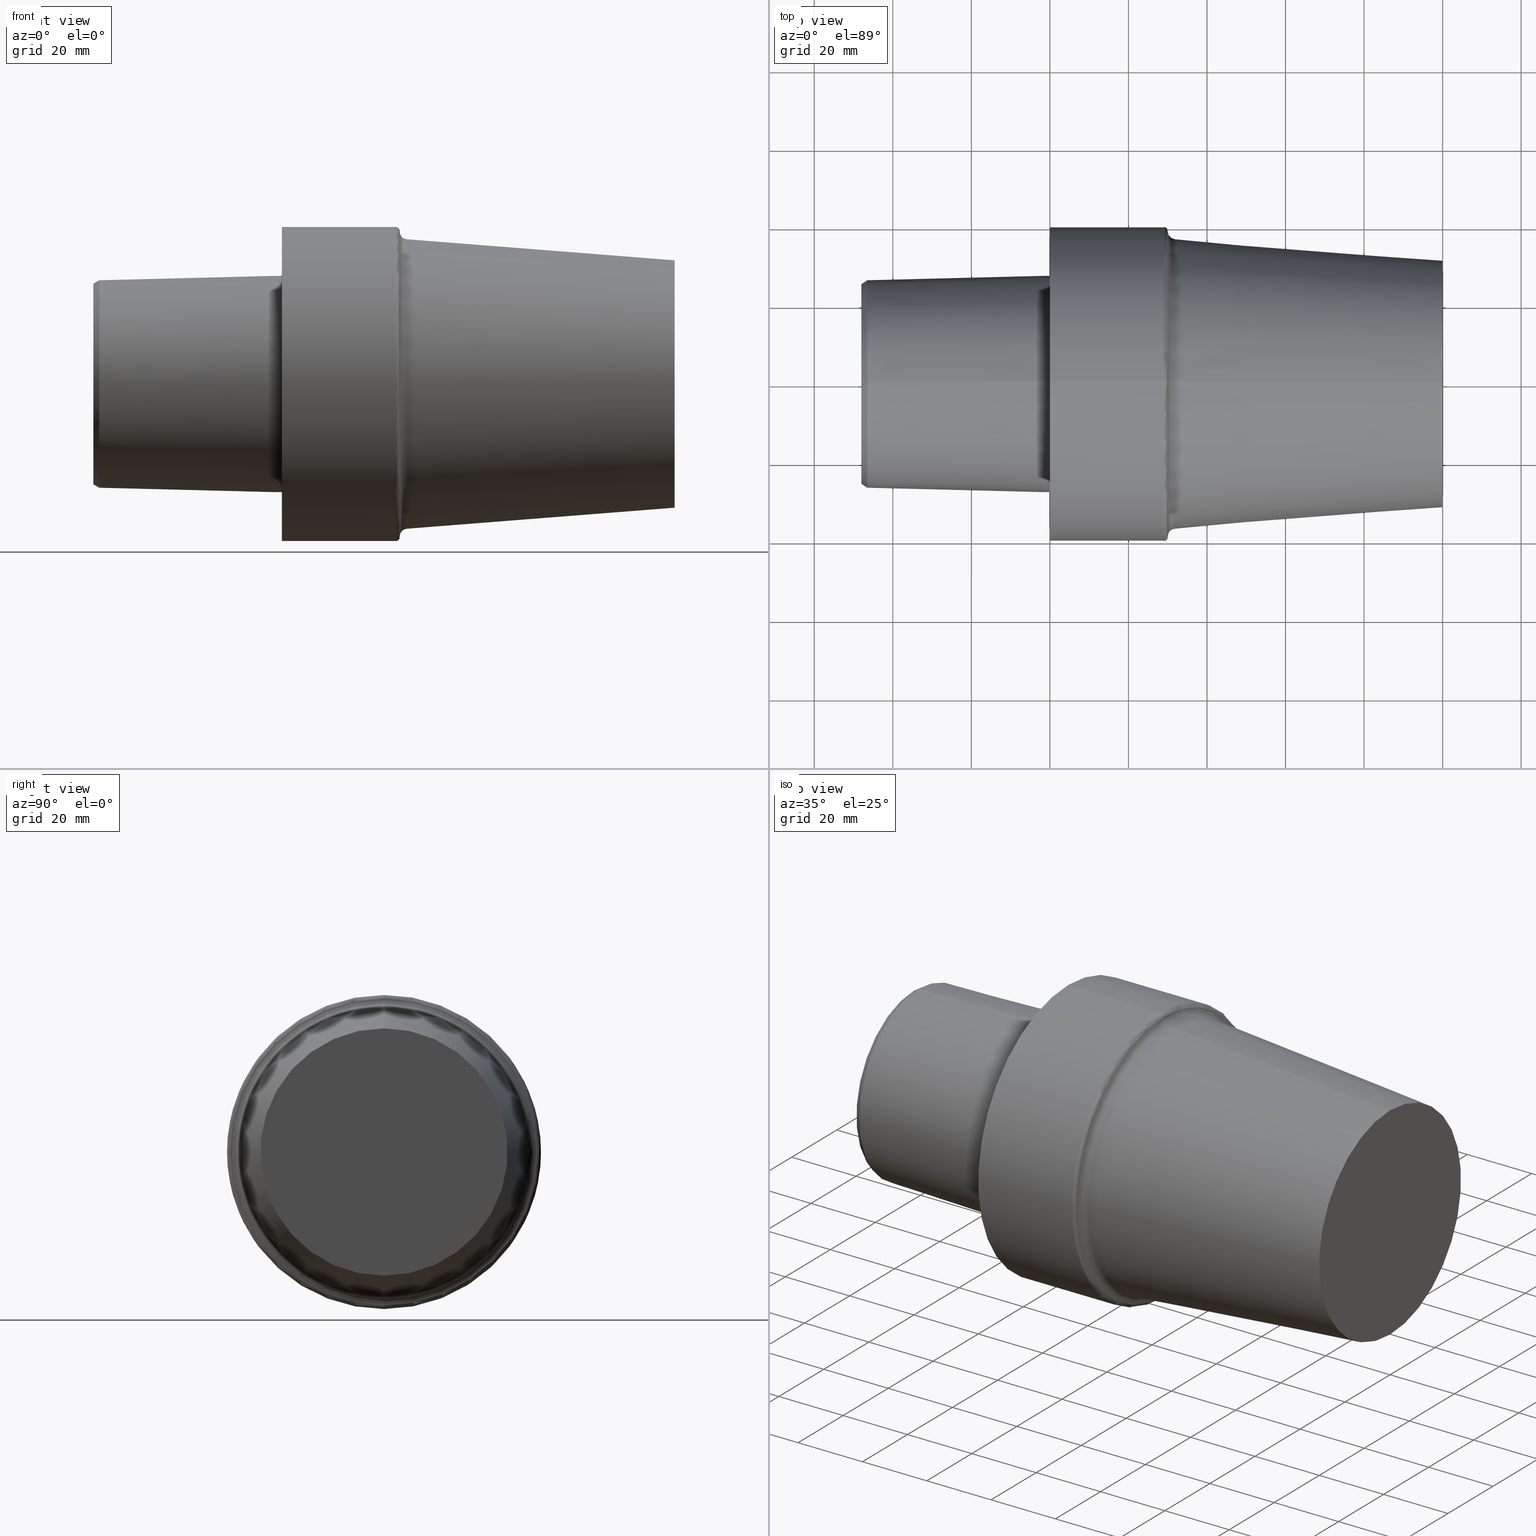
[diagram: canonical four-view strip — front | top / right | iso, engineering-drawing reading convention]
A machine part, canonical four-view strip (front | top / right | iso — engineering-drawing reading convention). The complete STEP part file that produces these views, byte-faithful:
ISO-10303-21;
HEADER;
FILE_DESCRIPTION (( 'STEP AP203' ),
    '1' );
FILE_NAME ('C8-F63-100.stp',
    '2022-03-11T15:35:38',
    ( '' ),
    ( '' ),
    'SwSTEP 2.0',
    'SolidWorks 2021',
    '' );
FILE_SCHEMA (( 'CONFIG_CONTROL_DESIGN' ));
ENDSEC;

DATA;
#1 = ORIENTED_EDGE ( 'NONE', *, *, #495, .T. ) ;
#2 = APPROVAL_STATUS ( 'not_yet_approved' ) ;
#3 = CARTESIAN_POINT ( 'NONE',  ( 99.99999992069133725, 0.000000000000000000, 0.000000000000000000 ) ) ;
#4 = ORIENTED_EDGE ( 'NONE', *, *, #316, .F. ) ;
#5 = APPLICATION_PROTOCOL_DEFINITION ( 'international standard', 'config_control_design', 1994, #99 ) ;
#6 = EDGE_CURVE ( 'NONE', #130, #38, #372, .T. ) ;
#7 = CARTESIAN_POINT ( 'NONE',  ( -46.49999994987858543, 3.234610638726928974E-15, 26.41260027772084129 ) ) ;
#8 = CARTESIAN_POINT ( 'NONE',  ( -47.99999995507708661, 0.000000000000000000, 0.000000000000000000 ) ) ;
#9 = LINE ( 'NONE', #171, #318 ) ;
#10 = EDGE_CURVE ( 'NONE', #397, #70, #104, .T. ) ;
#11 = LINE ( 'NONE', #384, #442 ) ;
#12 = EDGE_LOOP ( 'NONE', ( #407, #314 ) ) ;
#13 = ADVANCED_FACE ( 'NONE', ( #169, #504 ), #415, .F. ) ;
#14 = DIRECTION ( 'NONE',  ( 0.000000000000000000, 0.000000000000000000, 1.000000000000000000 ) ) ;
#15 = LOCAL_TIME ( 9, 35, 38.00000000000000000, #288 ) ;
#16 = ORIENTED_EDGE ( 'NONE', *, *, #6, .F. ) ;
#17 = CARTESIAN_POINT ( 'NONE',  ( 99.99999992069133725, 3.857637413950260996E-15, -31.49999997253168615 ) ) ;
#18 = CARTESIAN_POINT ( 'NONE',  ( -46.49999994987858543, 0.000000000000000000, 0.000000000000000000 ) ) ;
#19 = DIRECTION ( 'NONE',  ( 0.8660254037844387076, 0.000000000000000000, -0.4999999999999998890 ) ) ;
#20 = CARTESIAN_POINT ( 'NONE',  ( -47.99999995507708661, 25.54657487093501445, 0.000000000000000000 ) ) ;
#21 = AXIS2_PLACEMENT_3D ( 'NONE', #451, #123, #447 ) ;
#22 = AXIS2_PLACEMENT_3D ( 'NONE', #29, #225, #183 ) ;
#23 = DIRECTION ( 'NONE',  ( -1.000000000000000000, 0.000000000000000000, 0.000000000000000000 ) ) ;
#24 = DIRECTION ( 'NONE',  ( 0.000000000000000000, 0.000000000000000000, 1.000000000000000000 ) ) ;
#25 = PLANE ( 'NONE',  #156 ) ;
#26 = CARTESIAN_POINT ( 'NONE',  ( -47.99999995507708661, 0.000000000000000000, 0.000000000000000000 ) ) ;
#27 = CIRCLE ( 'NONE', #525, 25.54657487093501445 ) ;
#28 = ORIENTED_EDGE ( 'NONE', *, *, #401, .F. ) ;
#29 = CARTESIAN_POINT ( 'NONE',  ( 29.99999997209141611, 0.000000000000000000, 0.000000000000000000 ) ) ;
#30 = EDGE_CURVE ( 'NONE', #38, #333, #9, .T. ) ;
#31 = ORIENTED_EDGE ( 'NONE', *, *, #352, .F. ) ;
#32 = COORDINATED_UNIVERSAL_TIME_OFFSET ( 6, 0, .BEHIND. ) ;
#33 = EDGE_CURVE ( 'NONE', #74, #287, #507, .T. ) ;
#34 = EDGE_LOOP ( 'NONE', ( #194, #449, #203, #527 ) ) ;
#35 = DATE_AND_TIME ( #443, #216 ) ;
#36 = CYLINDRICAL_SURFACE ( 'NONE', #481, 27.52650806658465399 ) ;
#37 = VECTOR ( 'NONE', #185, 1000.000000000000227 ) ;
#38 = VERTEX_POINT ( 'NONE', #420 ) ;
#39 = DATE_TIME_ROLE ( 'classification_date' ) ;
#40 = ORIENTED_EDGE ( 'NONE', *, *, #76, .T. ) ;
#41 = SHAPE_DEFINITION_REPRESENTATION ( #458, #62 ) ;
#42 = ADVANCED_FACE ( 'NONE', ( #53 ), #214, .T. ) ;
#43 = ORIENTED_EDGE ( 'NONE', *, *, #30, .T. ) ;
#44 = PERSON_AND_ORGANIZATION ( #522, #509 ) ;
#45 = VERTEX_POINT ( 'NONE', #223 ) ;
#46 = CIRCLE ( 'NONE', #105, 27.52650806658465399 ) ;
#47 = CARTESIAN_POINT ( 'NONE',  ( 2.691416640612785863E-09, 0.000000000000000000, 27.52650806658465399 ) ) ;
#48 = DIRECTION ( 'NONE',  ( 1.000000000000000000, 0.000000000000000000, 0.000000000000000000 ) ) ;
#49 = DIRECTION ( 'NONE',  ( 0.000000000000000000, 0.000000000000000000, 1.000000000000000000 ) ) ;
#50 = ADVANCED_FACE ( 'NONE', ( #388 ), #294, .T. ) ;
#51 = EDGE_LOOP ( 'NONE', ( #234, #281 ) ) ;
#52 = DIRECTION ( 'NONE',  ( -1.000000000000000000, 0.000000000000000000, 0.000000000000000000 ) ) ;
#53 = FACE_OUTER_BOUND ( 'NONE', #107, .T. ) ;
#54 = AXIS2_PLACEMENT_3D ( 'NONE', #332, #297, #96 ) ;
#55 = CARTESIAN_POINT ( 'NONE',  ( -1.940694415329066391, 0.000000000000000000, 0.000000000000000000 ) ) ;
#56 = AXIS2_PLACEMENT_3D ( 'NONE', #299, #468, #94 ) ;
#57 = DIRECTION ( 'NONE',  ( 0.000000000000000000, 0.000000000000000000, -1.000000000000000000 ) ) ;
#58 = CARTESIAN_POINT ( 'NONE',  ( 29.99999997209141611, 0.000000000000000000, 0.000000000000000000 ) ) ;
#59 = ADVANCED_FACE ( 'NONE', ( #220 ), #213, .T. ) ;
#60 = DIRECTION ( 'NONE',  ( 0.000000000000000000, 0.000000000000000000, 1.000000000000000000 ) ) ;
#61 = DIRECTION ( 'NONE',  ( -1.000000000000000000, 0.000000000000000000, 0.000000000000000000 ) ) ;
#62 = ADVANCED_BREP_SHAPE_REPRESENTATION ( 'C8-F63-100', ( #315, #140 ), #510 ) ;
#63 = CARTESIAN_POINT ( 'NONE',  ( 99.99999992069133725, 0.000000000000000000, 31.49999997253168615 ) ) ;
#64 = ADVANCED_FACE ( 'NONE', ( #188 ), #266, .T. ) ;
#65 = DIRECTION ( 'NONE',  ( -1.000000000000000000, 0.000000000000000000, 0.000000000000000000 ) ) ;
#66 = CARTESIAN_POINT ( 'NONE',  ( 28.99999997311141797, 0.000000000000000000, 0.000000000000000000 ) ) ;
#67 = FACE_OUTER_BOUND ( 'NONE', #244, .T. ) ;
#68 = CIRCLE ( 'NONE', #371, 39.99249996386929951 ) ;
#69 = APPLICATION_CONTEXT ( 'configuration controlled 3d designs of mechanical parts and assemblies' ) ;
#70 = VERTEX_POINT ( 'NONE', #305 ) ;
#71 = APPROVAL_STATUS ( 'not_yet_approved' ) ;
#72 = EDGE_CURVE ( 'NONE', #91, #70, #87, .T. ) ;
#73 = EDGE_LOOP ( 'NONE', ( #409, #43, #489, #149 ) ) ;
#74 = VERTEX_POINT ( 'NONE', #385 ) ;
#75 = AXIS2_PLACEMENT_3D ( 'NONE', #511, #133, #250 ) ;
#76 = EDGE_CURVE ( 'NONE', #363, #130, #173, .T. ) ;
#77 = CONICAL_SURFACE ( 'NONE', #56, 26.41260027772084129, 0.5235987755982992597 ) ;
#78 = EDGE_LOOP ( 'NONE', ( #16, #256, #136, #456 ) ) ;
#79 = CC_DESIGN_APPROVAL ( #153, ( #455 ) ) ;
#80 = PERSON_AND_ORGANIZATION_ROLE ( 'design_owner' ) ;
#81 = CARTESIAN_POINT ( 'NONE',  ( 28.99999997311141797, 0.000000000000000000, 0.000000000000000000 ) ) ;
#82 = ORIENTED_EDGE ( 'NONE', *, *, #72, .F. ) ;
#83 = SECURITY_CLASSIFICATION_LEVEL ( 'unclassified' ) ;
#84 = EDGE_LOOP ( 'NONE', ( #503, #467, #237, #537 ) ) ;
#85 = EDGE_CURVE ( 'NONE', #363, #470, #476, .T. ) ;
#86 = ORIENTED_EDGE ( 'NONE', *, *, #118, .T. ) ;
#87 = CIRCLE ( 'NONE', #517, 36.85516611706941603 ) ;
#88 = CIRCLE ( 'NONE', #354, 26.41260027772084129 ) ;
#89 = DIRECTION ( 'NONE',  ( 0.9996876883616916398, 0.000000000000000000, -0.02499051296106793996 ) ) ;
#90 = CC_DESIGN_PERSON_AND_ORGANIZATION_ASSIGNMENT ( #245, #325, ( #277 ) ) ;
#91 = VERTEX_POINT ( 'NONE', #181 ) ;
#92 = CARTESIAN_POINT ( 'NONE',  ( 2.691416640612785863E-09, 3.371024999544667893E-15, -27.52650806658465399 ) ) ;
#93 = ORIENTED_EDGE ( 'NONE', *, *, #6, .T. ) ;
#94 = DIRECTION ( 'NONE',  ( 0.000000000000000000, 0.000000000000000000, -1.000000000000000000 ) ) ;
#95 = CARTESIAN_POINT ( 'NONE',  ( 29.99999997209141611, 0.000000000000000000, 0.000000000000000000 ) ) ;
#96 = DIRECTION ( 'NONE',  ( 0.000000000000000000, 0.000000000000000000, 1.000000000000000000 ) ) ;
#97 = AXIS2_PLACEMENT_3D ( 'NONE', #55, #382, #190 ) ;
#98 = CARTESIAN_POINT ( 'NONE',  ( -47.99999995507708661, 3.181581876606904120E-15, 25.54657487093501445 ) ) ;
#99 = APPLICATION_CONTEXT ( 'configuration controlled 3d designs of mechanical parts and assemblies' ) ;
#100 = CARTESIAN_POINT ( 'NONE',  ( 28.99999997311141797, 4.897668707065322260E-15, -39.99249996386929951 ) ) ;
#101 = CARTESIAN_POINT ( 'NONE',  ( -46.49999994987858543, 0.000000000000000000, 0.000000000000000000 ) ) ;
#102 = CARTESIAN_POINT ( 'NONE',  ( 29.99999997209141611, 38.84902107503569368, 0.000000000000000000 ) ) ;
#103 = FACE_OUTER_BOUND ( 'NONE', #459, .T. ) ;
#104 = CIRCLE ( 'NONE', #75, 1.999999997960001608 ) ;
#105 = AXIS2_PLACEMENT_3D ( 'NONE', #134, #52, #212 ) ;
#106 = LINE ( 'NONE', #63, #37 ) ;
#107 = EDGE_LOOP ( 'NONE', ( #253, #291, #112, #31 ) ) ;
#108 = DIRECTION ( 'NONE',  ( 0.000000000000000000, 1.000000000000000000, 1.224646799147350002E-16 ) ) ;
#109 = DIRECTION ( 'NONE',  ( 0.000000000000000000, 0.000000000000000000, 1.000000000000000000 ) ) ;
#110 = ORIENTED_EDGE ( 'NONE', *, *, #448, .T. ) ;
#111 = CIRCLE ( 'NONE', #258, 31.49999997253168615 ) ;
#112 = ORIENTED_EDGE ( 'NONE', *, *, #290, .T. ) ;
#113 = EDGE_CURVE ( 'NONE', #196, #70, #106, .T. ) ;
#114 = ORIENTED_EDGE ( 'NONE', *, *, #10, .F. ) ;
#115 = ORIENTED_EDGE ( 'NONE', *, *, #495, .F. ) ;
#116 = PERSON_AND_ORGANIZATION ( #522, #509 ) ;
#117 = DIRECTION ( 'NONE',  ( -1.000000000000000000, 0.000000000000000000, 0.000000000000000000 ) ) ;
#118 = EDGE_CURVE ( 'NONE', #460, #74, #129, .T. ) ;
#119 = AXIS2_PLACEMENT_3D ( 'NONE', #292, #48, #209 ) ;
#120 = AXIS2_PLACEMENT_3D ( 'NONE', #227, #61, #392 ) ;
#121 = VERTEX_POINT ( 'NONE', #425 ) ;
#122 = APPROVAL_DATE_TIME ( #538, #127 ) ;
#123 = DIRECTION ( 'NONE',  ( -1.000000000000000000, 0.000000000000000000, 0.000000000000000000 ) ) ;
#124 = ORIENTED_EDGE ( 'NONE', *, *, #113, .T. ) ;
#125 = EDGE_CURVE ( 'NONE', #460, #45, #403, .T. ) ;
#126 = EDGE_LOOP ( 'NONE', ( #300, #367 ) ) ;
#127 = APPROVAL ( #284, 'UNSPECIFIED' ) ;
#128 = DIRECTION ( 'NONE',  ( -1.000000000000000000, 0.000000000000000000, 0.000000000000000000 ) ) ;
#129 = CIRCLE ( 'NONE', #362, 38.99249996488934045 ) ;
#130 = VERTEX_POINT ( 'NONE', #98 ) ;
#131 = AXIS2_PLACEMENT_3D ( 'NONE', #228, #349, #57 ) ;
#132 = DIRECTION ( 'NONE',  ( -1.000000000000000000, 0.000000000000000000, 0.000000000000000000 ) ) ;
#133 = DIRECTION ( 'NONE',  ( 0.000000000000000000, -1.000000000000000000, 0.000000000000000000 ) ) ;
#134 = CARTESIAN_POINT ( 'NONE',  ( -1.940694415329066391, 0.000000000000000000, 0.000000000000000000 ) ) ;
#135 = EDGE_CURVE ( 'NONE', #321, #377, #454, .T. ) ;
#136 = ORIENTED_EDGE ( 'NONE', *, *, #85, .T. ) ;
#137 = DIRECTION ( 'NONE',  ( -1.000000000000000000, 0.000000000000000000, 0.000000000000000000 ) ) ;
#138 = CLOSED_SHELL ( 'NONE', ( #466, #412, #421, #533, #13, #42, #59, #141, #474, #64, #478, #205, #444, #484, #342, #186, #350, #50 ) ) ;
#139 = FACE_OUTER_BOUND ( 'NONE', #73, .T. ) ;
#140 = AXIS2_PLACEMENT_3D ( 'NONE', #450, #200, #453 ) ;
#141 = ADVANCED_FACE ( 'NONE', ( #218, #307 ), #479, .F. ) ;
#142 = CARTESIAN_POINT ( 'NONE',  ( -47.99999995507708661, 4.897668707065322260E-15, -39.99249996386929951 ) ) ;
#143 = DIRECTION ( 'NONE',  ( 0.000000000000000000, 0.000000000000000000, 1.000000000000000000 ) ) ;
#144 = CARTESIAN_POINT ( 'NONE',  ( 31.99999997005141594, 0.000000000000000000, 0.000000000000000000 ) ) ;
#145 = EDGE_CURVE ( 'NONE', #441, #196, #111, .T. ) ;
#146 = DIRECTION ( 'NONE',  ( 0.000000000000000000, 0.000000000000000000, 1.000000000000000000 ) ) ;
#147 = CIRCLE ( 'NONE', #54, 27.52650806658465399 ) ;
#148 = CARTESIAN_POINT ( 'NONE',  ( 31.84333994021121228, 0.000000000000000000, 0.000000000000000000 ) ) ;
#149 = ORIENTED_EDGE ( 'NONE', *, *, #365, .F. ) ;
#150 = EDGE_CURVE ( 'NONE', #38, #470, #387, .T. ) ;
#151 = ORIENTED_EDGE ( 'NONE', *, *, #352, .T. ) ;
#152 = CARTESIAN_POINT ( 'NONE',  ( 31.99999997005141594, 0.000000000000000000, 0.000000000000000000 ) ) ;
#153 = APPROVAL ( #2, 'UNSPECIFIED' ) ;
#154 = ORIENTED_EDGE ( 'NONE', *, *, #428, .F. ) ;
#155 = CIRCLE ( 'NONE', #198, 39.99249996386929951 ) ;
#156 = AXIS2_PLACEMENT_3D ( 'NONE', #268, #523, #393 ) ;
#157 = CC_DESIGN_APPROVAL ( #334, ( #277 ) ) ;
#158 = ORIENTED_EDGE ( 'NONE', *, *, #125, .T. ) ;
#159 = DIRECTION ( 'NONE',  ( 0.000000000000000000, 0.000000000000000000, 1.000000000000000000 ) ) ;
#160 = EDGE_LOOP ( 'NONE', ( #40, #529 ) ) ;
#161 = PERSON_AND_ORGANIZATION_ROLE ( 'creator' ) ;
#162 = CARTESIAN_POINT ( 'NONE',  ( 99.99999992069133725, 0.000000000000000000, 31.49999997253168615 ) ) ;
#163 = ORIENTED_EDGE ( 'NONE', *, *, #150, .T. ) ;
#164 = APPROVAL_ROLE ( '' ) ;
#165 = VECTOR ( 'NONE', #137, 1000.000000000000000 ) ;
#166 = AXIS2_PLACEMENT_3D ( 'NONE', #437, #477, #351 ) ;
#167 = EDGE_LOOP ( 'NONE', ( #452, #328, #158, #499 ) ) ;
#168 = LOCAL_TIME ( 9, 35, 38.00000000000000000, #204 ) ;
#169 = FACE_BOUND ( 'NONE', #126, .T. ) ;
#170 = DIRECTION ( 'NONE',  ( 0.000000000000000000, 0.000000000000000000, 1.000000000000000000 ) ) ;
#171 = CARTESIAN_POINT ( 'NONE',  ( -1.940694415329066391, 3.371024999544667893E-15, 27.52650806658465399 ) ) ;
#172 = DIRECTION ( 'NONE',  ( 1.000000000000000000, 0.000000000000000000, 0.000000000000000000 ) ) ;
#173 = CIRCLE ( 'NONE', #423, 25.54657487093501445 ) ;
#174 = ORIENTED_EDGE ( 'NONE', *, *, #365, .T. ) ;
#175 = AXIS2_PLACEMENT_3D ( 'NONE', #219, #172, #512 ) ;
#176 = DIRECTION ( 'NONE',  ( -1.000000000000000000, 0.000000000000000000, 0.000000000000000000 ) ) ;
#177 = DIRECTION ( 'NONE',  ( -1.000000000000000000, 0.000000000000000000, 0.000000000000000000 ) ) ;
#178 = DIRECTION ( 'NONE',  ( -1.000000000000000000, 0.000000000000000000, 0.000000000000000000 ) ) ;
#179 = CARTESIAN_POINT ( 'NONE',  ( -47.99999995507708661, 0.000000000000000000, 27.52650806658465399 ) ) ;
#180 = EDGE_CURVE ( 'NONE', #45, #287, #155, .T. ) ;
#181 = CARTESIAN_POINT ( 'NONE',  ( 31.84333994021121228, 4.513456121731304833E-15, -36.85516611706941603 ) ) ;
#182 = CIRCLE ( 'NONE', #488, 38.99249996488934045 ) ;
#183 = DIRECTION ( 'NONE',  ( 0.000000000000000000, 0.000000000000000000, 1.000000000000000000 ) ) ;
#184 = AXIS2_PLACEMENT_3D ( 'NONE', #66, #348, #189 ) ;
#185 = DIRECTION ( 'NONE',  ( -0.9969274840685427019, 0.000000000000000000, 0.07833001665240088562 ) ) ;
#186 = ADVANCED_FACE ( 'NONE', ( #201 ), #36, .T. ) ;
#187 = CARTESIAN_POINT ( 'NONE',  ( 2.691416640612785863E-09, 0.000000000000000000, 0.000000000000000000 ) ) ;
#188 = FACE_OUTER_BOUND ( 'NONE', #207, .T. ) ;
#189 = DIRECTION ( 'NONE',  ( 0.000000000000000000, 0.000000000000000000, 1.000000000000000000 ) ) ;
#190 = DIRECTION ( 'NONE',  ( 0.000000000000000000, 0.000000000000000000, -1.000000000000000000 ) ) ;
#191 = AXIS2_PLACEMENT_3D ( 'NONE', #187, #390, #146 ) ;
#192 = VERTEX_POINT ( 'NONE', #539 ) ;
#193 = FACE_OUTER_BOUND ( 'NONE', #160, .T. ) ;
#194 = ORIENTED_EDGE ( 'NONE', *, *, #448, .F. ) ;
#195 = PERSON_AND_ORGANIZATION_ROLE ( 'creator' ) ;
#196 = VERTEX_POINT ( 'NONE', #162 ) ;
#197 = APPROVAL_DATE_TIME ( #35, #153 ) ;
#198 = AXIS2_PLACEMENT_3D ( 'NONE', #81, #289, #400 ) ;
#199 = ORIENTED_EDGE ( 'NONE', *, *, #252, .F. ) ;
#200 = DIRECTION ( 'NONE',  ( 0.000000000000000000, 0.000000000000000000, 1.000000000000000000 ) ) ;
#201 = FACE_OUTER_BOUND ( 'NONE', #369, .T. ) ;
#202 = EDGE_LOOP ( 'NONE', ( #115, #317, #402, #28 ) ) ;
#203 = ORIENTED_EDGE ( 'NONE', *, *, #10, .T. ) ;
#204 = COORDINATED_UNIVERSAL_TIME_OFFSET ( 6, 0, .BEHIND. ) ;
#205 = ADVANCED_FACE ( 'NONE', ( #498 ), #309, .T. ) ;
#206 = AXIS2_PLACEMENT_3D ( 'NONE', #506, #296, #464 ) ;
#207 = EDGE_LOOP ( 'NONE', ( #445, #247, #124, #82 ) ) ;
#208 = LINE ( 'NONE', #179, #380 ) ;
#209 = DIRECTION ( 'NONE',  ( 0.000000000000000000, 1.000000000000000000, 0.000000000000000000 ) ) ;
#210 = CARTESIAN_POINT ( 'NONE',  ( 29.99999997209141611, 0.000000000000000000, 38.84902107923404202 ) ) ;
#211 = ORIENTED_EDGE ( 'NONE', *, *, #491, .T. ) ;
#212 = DIRECTION ( 'NONE',  ( 0.000000000000000000, 0.000000000000000000, 1.000000000000000000 ) ) ;
#213 = TOROIDAL_SURFACE ( 'NONE', #353, 38.99249996488934045, 0.9999999989799999156 ) ;
#214 = CYLINDRICAL_SURFACE ( 'NONE', #224, 39.99249996386929951 ) ;
#215 = PRODUCT_DEFINITION ( 'UNKNOWN', '', #455, #438 ) ;
#216 = LOCAL_TIME ( 9, 35, 38.00000000000000000, #282 ) ;
#217 = DIRECTION ( 'NONE',  ( -1.000000000000000000, 0.000000000000000000, 0.000000000000000000 ) ) ;
#218 = FACE_BOUND ( 'NONE', #12, .T. ) ;
#219 = CARTESIAN_POINT ( 'NONE',  ( -1.940694415329066391, 0.000000000000000000, 0.000000000000000000 ) ) ;
#220 = FACE_OUTER_BOUND ( 'NONE', #167, .T. ) ;
#221 = PLANE ( 'NONE',  #413 ) ;
#222 = CC_DESIGN_DATE_AND_TIME_ASSIGNMENT ( #399, #235, ( #215 ) ) ;
#223 = CARTESIAN_POINT ( 'NONE',  ( 28.99999997311141797, 0.000000000000000000, 39.99249996386929951 ) ) ;
#224 = AXIS2_PLACEMENT_3D ( 'NONE', #381, #177, #340 ) ;
#225 = DIRECTION ( 'NONE',  ( -1.000000000000000000, 0.000000000000000000, 0.000000000000000000 ) ) ;
#226 = DIRECTION ( 'NONE',  ( -1.000000000000000000, 0.000000000000000000, 0.000000000000000000 ) ) ;
#227 = CARTESIAN_POINT ( 'NONE',  ( 29.99999997209141611, 0.000000000000000000, 0.000000000000000000 ) ) ;
#228 = CARTESIAN_POINT ( 'NONE',  ( 28.99999997311141797, 0.000000000000000000, 38.99249996488934045 ) ) ;
#229 = EDGE_CURVE ( 'NONE', #377, #333, #208, .T. ) ;
#230 = CARTESIAN_POINT ( 'NONE',  ( -47.99999995507708661, 3.371024999544667893E-15, -27.52650806658465399 ) ) ;
#231 = DIRECTION ( 'NONE',  ( -1.000000000000000000, 0.000000000000000000, 0.000000000000000000 ) ) ;
#232 = CIRCLE ( 'NONE', #22, 38.84902107503569368 ) ;
#233 = LOCAL_TIME ( 9, 35, 38.00000000000000000, #279 ) ;
#234 = ORIENTED_EDGE ( 'NONE', *, *, #118, .F. ) ;
#235 = DATE_TIME_ROLE ( 'creation_date' ) ;
#236 = ORIENTED_EDGE ( 'NONE', *, *, #180, .T. ) ;
#237 = ORIENTED_EDGE ( 'NONE', *, *, #524, .F. ) ;
#238 = APPROVAL_ROLE ( '' ) ;
#239 = VECTOR ( 'NONE', #338, 1000.000000000000000 ) ;
#240 = AXIS2_PLACEMENT_3D ( 'NONE', #144, #480, #521 ) ;
#241 = ORIENTED_EDGE ( 'NONE', *, *, #30, .F. ) ;
#242 = PERSON_AND_ORGANIZATION ( #522, #509 ) ;
#243 = CARTESIAN_POINT ( 'NONE',  ( 99.99999992069133725, 0.000000000000000000, 0.000000000000000000 ) ) ;
#244 = EDGE_LOOP ( 'NONE', ( #154, #110, #324, #114 ) ) ;
#245 = PERSON_AND_ORGANIZATION ( #522, #509 ) ;
#246 = EDGE_CURVE ( 'NONE', #333, #534, #147, .T. ) ;
#247 = ORIENTED_EDGE ( 'NONE', *, *, #145, .T. ) ;
#248 = CC_DESIGN_PERSON_AND_ORGANIZATION_ASSIGNMENT ( #327, #80, ( #378 ) ) ;
#249 = AXIS2_PLACEMENT_3D ( 'NONE', #243, #475, #335 ) ;
#250 = DIRECTION ( 'NONE',  ( 0.000000000000000000, 0.000000000000000000, -1.000000000000000000 ) ) ;
#251 = CARTESIAN_POINT ( 'NONE',  ( 99.99999992069133725, 0.000000000000000000, 0.000000000000000000 ) ) ;
#252 = EDGE_CURVE ( 'NONE', #130, #363, #27, .T. ) ;
#253 = ORIENTED_EDGE ( 'NONE', *, *, #491, .F. ) ;
#254 = CARTESIAN_POINT ( 'NONE',  ( -47.99999995507708661, 0.000000000000000000, 0.000000000000000000 ) ) ;
#255 = PRODUCT_RELATED_PRODUCT_CATEGORY ( 'detail', '', ( #378 ) ) ;
#256 = ORIENTED_EDGE ( 'NONE', *, *, #76, .F. ) ;
#257 = CARTESIAN_POINT ( 'NONE',  ( 2.691416640612785863E-09, 0.000000000000000000, 0.000000000000000000 ) ) ;
#258 = AXIS2_PLACEMENT_3D ( 'NONE', #3, #117, #159 ) ;
#259 = DIRECTION ( 'NONE',  ( 0.000000000000000000, 0.000000000000000000, 1.000000000000000000 ) ) ;
#260 = LINE ( 'NONE', #17, #440 ) ;
#261 = CARTESIAN_POINT ( 'NONE',  ( 2.691416640612785863E-09, 0.000000000000000000, 0.000000000000000000 ) ) ;
#262 = CARTESIAN_POINT ( 'NONE',  ( 29.99999997209141611, 0.000000000000000000, 38.99249996488934045 ) ) ;
#263 = FACE_OUTER_BOUND ( 'NONE', #202, .T. ) ;
#264 = CC_DESIGN_PERSON_AND_ORGANIZATION_ASSIGNMENT ( #242, #161, ( #215 ) ) ;
#265 = DIRECTION ( 'NONE',  ( -1.000000000000000000, 0.000000000000000000, 0.000000000000000000 ) ) ;
#266 = CONICAL_SURFACE ( 'NONE', #346, 31.49999997253168615, 0.07841033878551205427 ) ;
#267 = APPROVAL_PERSON_ORGANIZATION ( #116, #127, #274 ) ;
#268 = CARTESIAN_POINT ( 'NONE',  ( 99.99999992069133725, 0.000000000000000000, 0.000000000000000000 ) ) ;
#269 = LINE ( 'NONE', #230, #463 ) ;
#270 = CC_DESIGN_PERSON_AND_ORGANIZATION_ASSIGNMENT ( #457, #370, ( #455 ) ) ;
#271 = ORIENTED_EDGE ( 'NONE', *, *, #530, .T. ) ;
#272 = DIRECTION ( 'NONE',  ( -1.000000000000000000, 0.000000000000000000, 0.000000000000000000 ) ) ;
#273 = ORIENTED_EDGE ( 'NONE', *, *, #180, .F. ) ;
#274 = APPROVAL_ROLE ( '' ) ;
#275 = EDGE_CURVE ( 'NONE', #196, #441, #472, .T. ) ;
#276 = AXIS2_PLACEMENT_3D ( 'NONE', #461, #176, #418 ) ;
#277 = SECURITY_CLASSIFICATION ( '', '', #83 ) ;
#278 = ORIENTED_EDGE ( 'NONE', *, *, #33, .T. ) ;
#279 = COORDINATED_UNIVERSAL_TIME_OFFSET ( 6, 0, .BEHIND. ) ;
#280 = EDGE_CURVE ( 'NONE', #287, #45, #462, .T. ) ;
#281 = ORIENTED_EDGE ( 'NONE', *, *, #345, .F. ) ;
#282 = COORDINATED_UNIVERSAL_TIME_OFFSET ( 6, 0, .BEHIND. ) ;
#283 = EDGE_LOOP ( 'NONE', ( #199, #93, #163, #492 ) ) ;
#284 = APPROVAL_STATUS ( 'not_yet_approved' ) ;
#285 = AXIS2_PLACEMENT_3D ( 'NONE', #251, #379, #14 ) ;
#286 = AXIS2_PLACEMENT_3D ( 'NONE', #439, #108, #487 ) ;
#287 = VERTEX_POINT ( 'NONE', #100 ) ;
#288 = COORDINATED_UNIVERSAL_TIME_OFFSET ( 6, 0, .BEHIND. ) ;
#289 = DIRECTION ( 'NONE',  ( -1.000000000000000000, 0.000000000000000000, 0.000000000000000000 ) ) ;
#290 = EDGE_CURVE ( 'NONE', #45, #192, #514, .T. ) ;
#291 = ORIENTED_EDGE ( 'NONE', *, *, #280, .T. ) ;
#292 = CARTESIAN_POINT ( 'NONE',  ( 2.691419645645579073E-09, 39.99249996386929951, 0.000000000000000000 ) ) ;
#293 = DIRECTION ( 'NONE',  ( 0.000000000000000000, 0.000000000000000000, 1.000000000000000000 ) ) ;
#294 = CONICAL_SURFACE ( 'NONE', #336, 26.41260027772084129, 0.5235987755982992597 ) ;
#295 = CIRCLE ( 'NONE', #166, 36.85516611706941603 ) ;
#296 = DIRECTION ( 'NONE',  ( 0.000000000000000000, 1.000000000000000000, 1.224646799147353947E-16 ) ) ;
#297 = DIRECTION ( 'NONE',  ( -1.000000000000000000, 0.000000000000000000, 0.000000000000000000 ) ) ;
#298 = ORIENTED_EDGE ( 'NONE', *, *, #316, .T. ) ;
#299 = CARTESIAN_POINT ( 'NONE',  ( -46.49999994987858543, 0.000000000000000000, 0.000000000000000000 ) ) ;
#300 = ORIENTED_EDGE ( 'NONE', *, *, #530, .F. ) ;
#301 = DIRECTION ( 'NONE',  ( -0.9969274840685427019, 9.592660417052167740E-18, -0.07833001665240088562 ) ) ;
#302 = AXIS2_PLACEMENT_3D ( 'NONE', #102, #265, #24 ) ;
#303 = CARTESIAN_POINT ( 'NONE',  ( -46.49999994987858543, 0.000000000000000000, -26.41260027772084129 ) ) ;
#304 = CARTESIAN_POINT ( 'NONE',  ( 29.99999997209141611, 4.757632931469198440E-15, -38.84902107923404202 ) ) ;
#305 = CARTESIAN_POINT ( 'NONE',  ( 31.84333994021121228, 0.000000000000000000, 36.85516611706941603 ) ) ;
#306 = DIRECTION ( 'NONE',  ( -1.000000000000000000, 0.000000000000000000, 0.000000000000000000 ) ) ;
#307 = FACE_OUTER_BOUND ( 'NONE', #51, .T. ) ;
#308 = CARTESIAN_POINT ( 'NONE',  ( 99.99999992069133725, 4.185546767840780548E-15, -31.49999997253168615 ) ) ;
#309 = CONICAL_SURFACE ( 'NONE', #249, 31.49999997253168615, 0.07841033878551205427 ) ;
#310 = TOROIDAL_SURFACE ( 'NONE', #240, 38.84902108343242588, 1.999999997959999831 ) ;
#311 = DIRECTION ( 'NONE',  ( -1.000000000000000000, 0.000000000000000000, 0.000000000000000000 ) ) ;
#312 = DIRECTION ( 'NONE',  ( 0.000000000000000000, 0.000000000000000000, 1.000000000000000000 ) ) ;
#313 =( NAMED_UNIT ( * ) PLANE_ANGLE_UNIT ( ) SI_UNIT ( $, .RADIAN. ) );
#314 = ORIENTED_EDGE ( 'NONE', *, *, #428, .T. ) ;
#315 = MANIFOLD_SOLID_BREP ( 'Scale1', #138 ) ;
#316 = EDGE_CURVE ( 'NONE', #192, #121, #68, .T. ) ;
#317 = ORIENTED_EDGE ( 'NONE', *, *, #135, .T. ) ;
#318 = VECTOR ( 'NONE', #513, 1000.000000000000114 ) ;
#319 = CIRCLE ( 'NONE', #120, 38.84902107503569368 ) ;
#320 = APPROVAL_PERSON_ORGANIZATION ( #44, #334, #238 ) ;
#321 = VERTEX_POINT ( 'NONE', #92 ) ;
#322 = CALENDAR_DATE ( 2022, 11, 3 ) ;
#323 = CARTESIAN_POINT ( 'NONE',  ( -47.99999995507708661, 0.000000000000000000, 0.000000000000000000 ) ) ;
#324 = ORIENTED_EDGE ( 'NONE', *, *, #72, .T. ) ;
#325 = PERSON_AND_ORGANIZATION_ROLE ( 'classification_officer' ) ;
#326 = ORIENTED_EDGE ( 'NONE', *, *, #290, .F. ) ;
#327 = PERSON_AND_ORGANIZATION ( #522, #509 ) ;
#328 = ORIENTED_EDGE ( 'NONE', *, *, #345, .T. ) ;
#329 = PERSON_AND_ORGANIZATION ( #522, #509 ) ;
#330 = VERTEX_POINT ( 'NONE', #304 ) ;
#331 = EDGE_CURVE ( 'NONE', #441, #91, #260, .T. ) ;
#332 = CARTESIAN_POINT ( 'NONE',  ( -1.940694415329066391, 0.000000000000000000, 0.000000000000000000 ) ) ;
#333 = VERTEX_POINT ( 'NONE', #426 ) ;
#334 = APPROVAL ( #71, 'UNSPECIFIED' ) ;
#335 = DIRECTION ( 'NONE',  ( 0.000000000000000000, 0.000000000000000000, 1.000000000000000000 ) ) ;
#336 = AXIS2_PLACEMENT_3D ( 'NONE', #101, #473, #482 ) ;
#337 = AXIS2_PLACEMENT_3D ( 'NONE', #152, #231, #109 ) ;
#338 = DIRECTION ( 'NONE',  ( 0.8660254037844387076, 6.123233995736768501E-17, 0.4999999999999998890 ) ) ;
#339 = FACE_OUTER_BOUND ( 'NONE', #78, .T. ) ;
#340 = DIRECTION ( 'NONE',  ( 0.000000000000000000, 0.000000000000000000, 1.000000000000000000 ) ) ;
#341 = DIRECTION ( 'NONE',  ( -1.000000000000000000, 0.000000000000000000, 0.000000000000000000 ) ) ;
#342 = ADVANCED_FACE ( 'NONE', ( #516 ), #471, .T. ) ;
#343 = CARTESIAN_POINT ( 'NONE',  ( -47.99999995507708661, 0.000000000000000000, 0.000000000000000000 ) ) ;
#344 = CARTESIAN_POINT ( 'NONE',  ( -47.99999995507708661, 0.000000000000000000, 39.99249996386929951 ) ) ;
#345 = EDGE_CURVE ( 'NONE', #74, #460, #182, .T. ) ;
#346 = AXIS2_PLACEMENT_3D ( 'NONE', #526, #23, #391 ) ;
#347 = CIRCLE ( 'NONE', #286, 1.999999997960001608 ) ;
#348 = DIRECTION ( 'NONE',  ( -1.000000000000000000, 0.000000000000000000, 0.000000000000000000 ) ) ;
#349 = DIRECTION ( 'NONE',  ( 0.000000000000000000, -1.000000000000000000, 0.000000000000000000 ) ) ;
#350 = ADVANCED_FACE ( 'NONE', ( #139 ), #535, .T. ) ;
#351 = DIRECTION ( 'NONE',  ( 0.000000000000000000, 0.000000000000000000, 1.000000000000000000 ) ) ;
#352 = EDGE_CURVE ( 'NONE', #121, #192, #518, .T. ) ;
#353 = AXIS2_PLACEMENT_3D ( 'NONE', #429, #433, #312 ) ;
#354 = AXIS2_PLACEMENT_3D ( 'NONE', #18, #132, #49 ) ;
#355 = DIRECTION ( 'NONE',  ( 0.000000000000000000, 0.000000000000000000, 1.000000000000000000 ) ) ;
#356 = CC_DESIGN_SECURITY_CLASSIFICATION ( #277, ( #455 ) ) ;
#357 = ORIENTED_EDGE ( 'NONE', *, *, #275, .F. ) ;
#358 = CARTESIAN_POINT ( 'NONE',  ( -46.49999994987858543, 0.000000000000000000, -26.41260027772084129 ) ) ;
#359 = EDGE_LOOP ( 'NONE', ( #298, #151 ) ) ;
#360 = CALENDAR_DATE ( 2022, 11, 3 ) ;
#361 = ORIENTED_EDGE ( 'NONE', *, *, #125, .F. ) ;
#362 = AXIS2_PLACEMENT_3D ( 'NONE', #95, #226, #259 ) ;
#363 = VERTEX_POINT ( 'NONE', #416 ) ;
#364 = APPLICATION_PROTOCOL_DEFINITION ( 'international standard', 'config_control_design', 1994, #69 ) ;
#365 = EDGE_CURVE ( 'NONE', #470, #534, #11, .T. ) ;
#366 = DIRECTION ( 'NONE',  ( 0.000000000000000000, 0.000000000000000000, 1.000000000000000000 ) ) ;
#367 = ORIENTED_EDGE ( 'NONE', *, *, #135, .F. ) ;
#368 = CC_DESIGN_PERSON_AND_ORGANIZATION_ASSIGNMENT ( #406, #195, ( #455 ) ) ;
#369 = EDGE_LOOP ( 'NONE', ( #271, #1, #531, #398 ) ) ;
#370 = PERSON_AND_ORGANIZATION_ROLE ( 'design_supplier' ) ;
#371 = AXIS2_PLACEMENT_3D ( 'NONE', #257, #217, #170 ) ;
#372 = LINE ( 'NONE', #7, #239 ) ;
#373 = DIRECTION ( 'NONE',  ( 0.000000000000000000, 0.000000000000000000, 1.000000000000000000 ) ) ;
#374 = EDGE_CURVE ( 'NONE', #470, #38, #88, .T. ) ;
#375 = EDGE_LOOP ( 'NONE', ( #236, #211, #4, #326 ) ) ;
#376 = CARTESIAN_POINT ( 'NONE',  ( 28.99999997311141797, 0.000000000000000000, 0.000000000000000000 ) ) ;
#377 = VERTEX_POINT ( 'NONE', #47 ) ;
#378 = PRODUCT ( 'C8-F63-100', 'C8-F63-100', '', ( #497 ) ) ;
#379 = DIRECTION ( 'NONE',  ( -1.000000000000000000, 0.000000000000000000, 0.000000000000000000 ) ) ;
#380 = VECTOR ( 'NONE', #178, 1000.000000000000000 ) ;
#381 = CARTESIAN_POINT ( 'NONE',  ( -47.99999995507708661, 0.000000000000000000, 0.000000000000000000 ) ) ;
#382 = DIRECTION ( 'NONE',  ( 1.000000000000000000, 0.000000000000000000, 0.000000000000000000 ) ) ;
#383 = DIRECTION ( 'NONE',  ( -1.000000000000000000, 0.000000000000000000, 0.000000000000000000 ) ) ;
#384 = CARTESIAN_POINT ( 'NONE',  ( -1.940694415329066391, 0.000000000000000000, -27.52650806658465399 ) ) ;
#385 = CARTESIAN_POINT ( 'NONE',  ( 29.99999997209141611, 4.836436367170416693E-15, -38.99249996488934045 ) ) ;
#386 = LINE ( 'NONE', #142, #389 ) ;
#387 = CIRCLE ( 'NONE', #21, 26.41260027772084129 ) ;
#388 = FACE_OUTER_BOUND ( 'NONE', #283, .T. ) ;
#389 = VECTOR ( 'NONE', #272, 1000.000000000000000 ) ;
#390 = DIRECTION ( 'NONE',  ( -1.000000000000000000, 0.000000000000000000, 0.000000000000000000 ) ) ;
#391 = DIRECTION ( 'NONE',  ( 0.000000000000000000, 0.000000000000000000, 1.000000000000000000 ) ) ;
#392 = DIRECTION ( 'NONE',  ( 0.000000000000000000, 0.000000000000000000, 1.000000000000000000 ) ) ;
#393 = DIRECTION ( 'NONE',  ( 0.000000000000000000, 0.000000000000000000, 1.000000000000000000 ) ) ;
#394 = AXIS2_PLACEMENT_3D ( 'NONE', #376, #341, #465 ) ;
#395 = ORIENTED_EDGE ( 'NONE', *, *, #145, .F. ) ;
#396 = TOROIDAL_SURFACE ( 'NONE', #337, 38.84902108343242588, 1.999999997959999831 ) ;
#397 = VERTEX_POINT ( 'NONE', #210 ) ;
#398 = ORIENTED_EDGE ( 'NONE', *, *, #229, .F. ) ;
#399 = DATE_AND_TIME ( #322, #502 ) ;
#400 = DIRECTION ( 'NONE',  ( 0.000000000000000000, 0.000000000000000000, 1.000000000000000000 ) ) ;
#401 = EDGE_CURVE ( 'NONE', #534, #333, #46, .T. ) ;
#402 = ORIENTED_EDGE ( 'NONE', *, *, #229, .T. ) ;
#403 = CIRCLE ( 'NONE', #131, 0.9999999989799973621 ) ;
#404 = AXIS2_PLACEMENT_3D ( 'NONE', #26, #311, #355 ) ;
#405 = EDGE_LOOP ( 'NONE', ( #86, #278, #273, #361 ) ) ;
#406 = PERSON_AND_ORGANIZATION ( #522, #509 ) ;
#407 = ORIENTED_EDGE ( 'NONE', *, *, #469, .T. ) ;
#408 = CALENDAR_DATE ( 2022, 11, 3 ) ;
#409 = ORIENTED_EDGE ( 'NONE', *, *, #150, .F. ) ;
#410 = DIRECTION ( 'NONE',  ( -1.000000000000000000, 0.000000000000000000, 0.000000000000000000 ) ) ;
#411 = AXIS2_PLACEMENT_3D ( 'NONE', #254, #508, #505 ) ;
#412 = ADVANCED_FACE ( 'NONE', ( #339 ), #77, .T. ) ;
#413 = AXIS2_PLACEMENT_3D ( 'NONE', #20, #427, #430 ) ;
#414 = CC_DESIGN_APPROVAL ( #127, ( #215 ) ) ;
#415 = PLANE ( 'NONE',  #119 ) ;
#416 = CARTESIAN_POINT ( 'NONE',  ( -47.99999995507708661, 0.000000000000000000, -25.54657487093501445 ) ) ;
#417 = ORIENTED_EDGE ( 'NONE', *, *, #401, .T. ) ;
#418 = DIRECTION ( 'NONE',  ( 0.000000000000000000, 0.000000000000000000, 1.000000000000000000 ) ) ;
#419 = UNCERTAINTY_MEASURE_WITH_UNIT (LENGTH_MEASURE( 1.000000000000000082E-05 ), #528, 'distance_accuracy_value', 'NONE');
#420 = CARTESIAN_POINT ( 'NONE',  ( -46.49999994987858543, 3.302817819135798828E-15, 26.41260027772084129 ) ) ;
#421 = ADVANCED_FACE ( 'NONE', ( #422 ), #501, .T. ) ;
#422 = FACE_OUTER_BOUND ( 'NONE', #496, .T. ) ;
#423 = AXIS2_PLACEMENT_3D ( 'NONE', #343, #383, #515 ) ;
#424 = TOROIDAL_SURFACE ( 'NONE', #184, 38.99249996488934045, 0.9999999989799999156 ) ;
#425 = CARTESIAN_POINT ( 'NONE',  ( 2.691416640612785863E-09, 4.897668707065322260E-15, -39.99249996386929951 ) ) ;
#426 = CARTESIAN_POINT ( 'NONE',  ( -1.940694415329066391, 0.000000000000000000, 27.52650806658465399 ) ) ;
#427 = DIRECTION ( 'NONE',  ( 1.000000000000000000, 0.000000000000000000, 0.000000000000000000 ) ) ;
#428 = EDGE_CURVE ( 'NONE', #330, #397, #232, .T. ) ;
#429 = CARTESIAN_POINT ( 'NONE',  ( 28.99999997311141797, 0.000000000000000000, 0.000000000000000000 ) ) ;
#430 = DIRECTION ( 'NONE',  ( 0.000000000000000000, 1.000000000000000000, 0.000000000000000000 ) ) ;
#431 = CC_DESIGN_DATE_AND_TIME_ASSIGNMENT ( #493, #39, ( #277 ) ) ;
#432 = AXIS2_PLACEMENT_3D ( 'NONE', #261, #520, #143 ) ;
#433 = DIRECTION ( 'NONE',  ( -1.000000000000000000, 0.000000000000000000, 0.000000000000000000 ) ) ;
#434 = CIRCLE ( 'NONE', #191, 27.52650806658465399 ) ;
#435 = APPROVAL_PERSON_ORGANIZATION ( #329, #153, #164 ) ;
#436 = FACE_OUTER_BOUND ( 'NONE', #405, .T. ) ;
#437 = CARTESIAN_POINT ( 'NONE',  ( 31.84333994021121228, 0.000000000000000000, 0.000000000000000000 ) ) ;
#438 = DESIGN_CONTEXT ( 'detailed design', #99, 'design' ) ;
#439 = CARTESIAN_POINT ( 'NONE',  ( 31.99999997005141594, 4.757632931983355101E-15, -38.84902108343242588 ) ) ;
#440 = VECTOR ( 'NONE', #301, 1000.000000000000227 ) ;
#441 = VERTEX_POINT ( 'NONE', #308 ) ;
#442 = VECTOR ( 'NONE', #89, 1000.000000000000114 ) ;
#443 = CALENDAR_DATE ( 2022, 11, 3 ) ;
#444 = ADVANCED_FACE ( 'NONE', ( #67 ), #310, .F. ) ;
#445 = ORIENTED_EDGE ( 'NONE', *, *, #331, .F. ) ;
#446 = DATE_AND_TIME ( #360, #168 ) ;
#447 = DIRECTION ( 'NONE',  ( 0.000000000000000000, 0.000000000000000000, 1.000000000000000000 ) ) ;
#448 = EDGE_CURVE ( 'NONE', #330, #91, #347, .T. ) ;
#449 = ORIENTED_EDGE ( 'NONE', *, *, #469, .F. ) ;
#450 = CARTESIAN_POINT ( 'NONE',  ( 0.000000000000000000, 0.000000000000000000, 0.000000000000000000 ) ) ;
#451 = CARTESIAN_POINT ( 'NONE',  ( -46.49999994987858543, 0.000000000000000000, 0.000000000000000000 ) ) ;
#452 = ORIENTED_EDGE ( 'NONE', *, *, #33, .F. ) ;
#453 = DIRECTION ( 'NONE',  ( 1.000000000000000000, 0.000000000000000000, 0.000000000000000000 ) ) ;
#454 = CIRCLE ( 'NONE', #432, 27.52650806658465399 ) ;
#455 = PRODUCT_DEFINITION_FORMATION_WITH_SPECIFIED_SOURCE ( 'ANY', '', #378, .NOT_KNOWN. ) ;
#456 = ORIENTED_EDGE ( 'NONE', *, *, #374, .T. ) ;
#457 = PERSON_AND_ORGANIZATION ( #522, #509 ) ;
#458 = PRODUCT_DEFINITION_SHAPE ( 'NONE', 'NONE',  #215 ) ;
#459 = EDGE_LOOP ( 'NONE', ( #357, #395 ) ) ;
#460 = VERTEX_POINT ( 'NONE', #262 ) ;
#461 = CARTESIAN_POINT ( 'NONE',  ( 2.691416640612785863E-09, 0.000000000000000000, 0.000000000000000000 ) ) ;
#462 = CIRCLE ( 'NONE', #394, 39.99249996386929951 ) ;
#463 = VECTOR ( 'NONE', #306, 1000.000000000000000 ) ;
#464 = DIRECTION ( 'NONE',  ( 0.000000000000000000, -1.224646799147358384E-16, 1.000000000000000000 ) ) ;
#465 = DIRECTION ( 'NONE',  ( 0.000000000000000000, 0.000000000000000000, 1.000000000000000000 ) ) ;
#466 = ADVANCED_FACE ( 'NONE', ( #193 ), #221, .F. ) ;
#467 = ORIENTED_EDGE ( 'NONE', *, *, #331, .T. ) ;
#468 = DIRECTION ( 'NONE',  ( 1.000000000000000000, 0.000000000000000000, 0.000000000000000000 ) ) ;
#469 = EDGE_CURVE ( 'NONE', #397, #330, #319, .T. ) ;
#470 = VERTEX_POINT ( 'NONE', #358 ) ;
#471 = CYLINDRICAL_SURFACE ( 'NONE', #411, 39.99249996386929951 ) ;
#472 = CIRCLE ( 'NONE', #285, 31.49999997253168615 ) ;
#473 = DIRECTION ( 'NONE',  ( 1.000000000000000000, 0.000000000000000000, 0.000000000000000000 ) ) ;
#474 = ADVANCED_FACE ( 'NONE', ( #519 ), #396, .F. ) ;
#475 = DIRECTION ( 'NONE',  ( -1.000000000000000000, 0.000000000000000000, 0.000000000000000000 ) ) ;
#476 = LINE ( 'NONE', #303, #500 ) ;
#477 = DIRECTION ( 'NONE',  ( -1.000000000000000000, 0.000000000000000000, 0.000000000000000000 ) ) ;
#478 = ADVANCED_FACE ( 'NONE', ( #103 ), #25, .F. ) ;
#479 = PLANE ( 'NONE',  #302 ) ;
#480 = DIRECTION ( 'NONE',  ( -1.000000000000000000, 0.000000000000000000, 0.000000000000000000 ) ) ;
#481 = AXIS2_PLACEMENT_3D ( 'NONE', #323, #494, #366 ) ;
#482 = DIRECTION ( 'NONE',  ( 0.000000000000000000, 0.000000000000000000, -1.000000000000000000 ) ) ;
#483 = CARTESIAN_POINT ( 'NONE',  ( -1.940694415329066391, 3.371024999544667893E-15, -27.52650806658465399 ) ) ;
#484 = ADVANCED_FACE ( 'NONE', ( #436 ), #424, .T. ) ;
#485 = CYLINDRICAL_SURFACE ( 'NONE', #404, 27.52650806658465399 ) ;
#486 = ORIENTED_EDGE ( 'NONE', *, *, #374, .F. ) ;
#487 = DIRECTION ( 'NONE',  ( 0.000000000000000000, -1.224646799147350495E-16, 1.000000000000000000 ) ) ;
#488 = AXIS2_PLACEMENT_3D ( 'NONE', #58, #410, #293 ) ;
#489 = ORIENTED_EDGE ( 'NONE', *, *, #246, .T. ) ;
#490 = CALENDAR_DATE ( 2022, 11, 3 ) ;
#491 = EDGE_CURVE ( 'NONE', #287, #121, #386, .T. ) ;
#492 = ORIENTED_EDGE ( 'NONE', *, *, #85, .F. ) ;
#493 = DATE_AND_TIME ( #408, #233 ) ;
#494 = DIRECTION ( 'NONE',  ( -1.000000000000000000, 0.000000000000000000, 0.000000000000000000 ) ) ;
#495 = EDGE_CURVE ( 'NONE', #321, #534, #269, .T. ) ;
#496 = EDGE_LOOP ( 'NONE', ( #241, #486, #174, #417 ) ) ;
#497 = MECHANICAL_CONTEXT ( 'NONE', #69, 'mechanical' ) ;
#498 = FACE_OUTER_BOUND ( 'NONE', #84, .T. ) ;
#499 = ORIENTED_EDGE ( 'NONE', *, *, #280, .F. ) ;
#500 = VECTOR ( 'NONE', #19, 1000.000000000000000 ) ;
#501 = CONICAL_SURFACE ( 'NONE', #97, 27.52650806658465399, 0.02499311489546479637 ) ;
#502 = LOCAL_TIME ( 9, 35, 38.00000000000000000, #32 ) ;
#503 = ORIENTED_EDGE ( 'NONE', *, *, #275, .T. ) ;
#504 = FACE_OUTER_BOUND ( 'NONE', #359, .T. ) ;
#505 = DIRECTION ( 'NONE',  ( 0.000000000000000000, 0.000000000000000000, 1.000000000000000000 ) ) ;
#506 = CARTESIAN_POINT ( 'NONE',  ( 28.99999997311141797, 4.775204027275495348E-15, -38.99249996488934045 ) ) ;
#507 = CIRCLE ( 'NONE', #206, 0.9999999989799973621 ) ;
#508 = DIRECTION ( 'NONE',  ( -1.000000000000000000, 0.000000000000000000, 0.000000000000000000 ) ) ;
#509 = ORGANIZATION ( 'UNSPECIFIED', 'UNSPECIFIED', '' ) ;
#510 =( GEOMETRIC_REPRESENTATION_CONTEXT ( 3 ) GLOBAL_UNCERTAINTY_ASSIGNED_CONTEXT ( ( #419 ) ) GLOBAL_UNIT_ASSIGNED_CONTEXT ( ( #528, #313, #536 ) ) REPRESENTATION_CONTEXT ( 'NONE', 'WORKASPACE' ) );
#511 = CARTESIAN_POINT ( 'NONE',  ( 31.99999997005141594, 0.000000000000000000, 38.84902108343242588 ) ) ;
#512 = DIRECTION ( 'NONE',  ( 0.000000000000000000, 0.000000000000000000, -1.000000000000000000 ) ) ;
#513 = DIRECTION ( 'NONE',  ( 0.9996876883616916398, 3.060455170682228743E-18, 0.02499051296106793996 ) ) ;
#514 = LINE ( 'NONE', #344, #165 ) ;
#515 = DIRECTION ( 'NONE',  ( 0.000000000000000000, 0.000000000000000000, 1.000000000000000000 ) ) ;
#516 = FACE_OUTER_BOUND ( 'NONE', #375, .T. ) ;
#517 = AXIS2_PLACEMENT_3D ( 'NONE', #148, #65, #60 ) ;
#518 = CIRCLE ( 'NONE', #276, 39.99249996386929951 ) ;
#519 = FACE_OUTER_BOUND ( 'NONE', #34, .T. ) ;
#520 = DIRECTION ( 'NONE',  ( -1.000000000000000000, 0.000000000000000000, 0.000000000000000000 ) ) ;
#521 = DIRECTION ( 'NONE',  ( 0.000000000000000000, 0.000000000000000000, 1.000000000000000000 ) ) ;
#522 = PERSON ( 'UNSPECIFIED', 'UNSPECIFIED', 'UNSPECIFIED', ('UNSPECIFIED'), ('UNSPECIFIED'), ('UNSPECIFIED') ) ;
#523 = DIRECTION ( 'NONE',  ( -1.000000000000000000, 0.000000000000000000, 0.000000000000000000 ) ) ;
#524 = EDGE_CURVE ( 'NONE', #70, #91, #295, .T. ) ;
#525 = AXIS2_PLACEMENT_3D ( 'NONE', #8, #128, #373 ) ;
#526 = CARTESIAN_POINT ( 'NONE',  ( 99.99999992069133725, 0.000000000000000000, 0.000000000000000000 ) ) ;
#527 = ORIENTED_EDGE ( 'NONE', *, *, #524, .T. ) ;
#528 =( LENGTH_UNIT ( ) NAMED_UNIT ( * ) SI_UNIT ( .MILLI., .METRE. ) );
#529 = ORIENTED_EDGE ( 'NONE', *, *, #252, .T. ) ;
#530 = EDGE_CURVE ( 'NONE', #377, #321, #434, .T. ) ;
#531 = ORIENTED_EDGE ( 'NONE', *, *, #246, .F. ) ;
#532 = APPROVAL_DATE_TIME ( #446, #334 ) ;
#533 = ADVANCED_FACE ( 'NONE', ( #263 ), #485, .T. ) ;
#534 = VERTEX_POINT ( 'NONE', #483 ) ;
#535 = CONICAL_SURFACE ( 'NONE', #175, 27.52650806658465399, 0.02499311489546479637 ) ;
#536 =( NAMED_UNIT ( * ) SI_UNIT ( $, .STERADIAN. ) SOLID_ANGLE_UNIT ( ) );
#537 = ORIENTED_EDGE ( 'NONE', *, *, #113, .F. ) ;
#538 = DATE_AND_TIME ( #490, #15 ) ;
#539 = CARTESIAN_POINT ( 'NONE',  ( 2.691416640612785863E-09, 0.000000000000000000, 39.99249996386929951 ) ) ;
ENDSEC;
END-ISO-10303-21;
